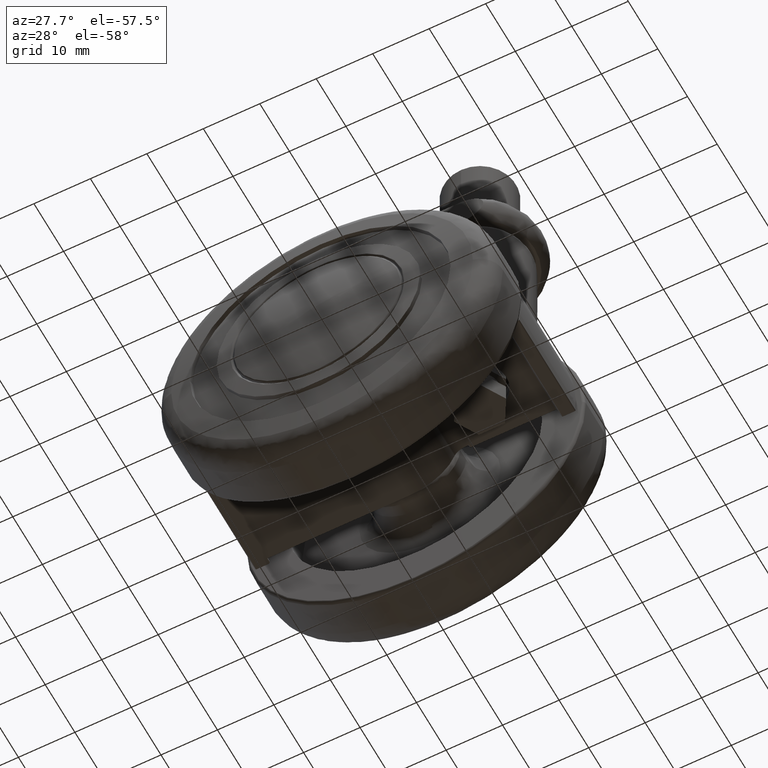
[diagram: clean part render]
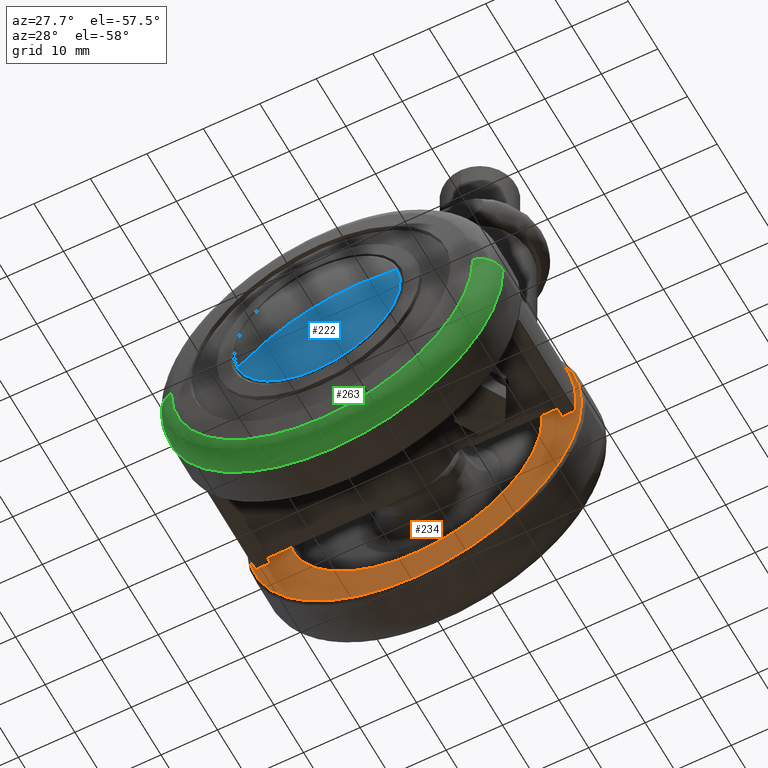
[diagram: same view with three faces highlighted in distinct colors, each labeled with its STEP entity id]
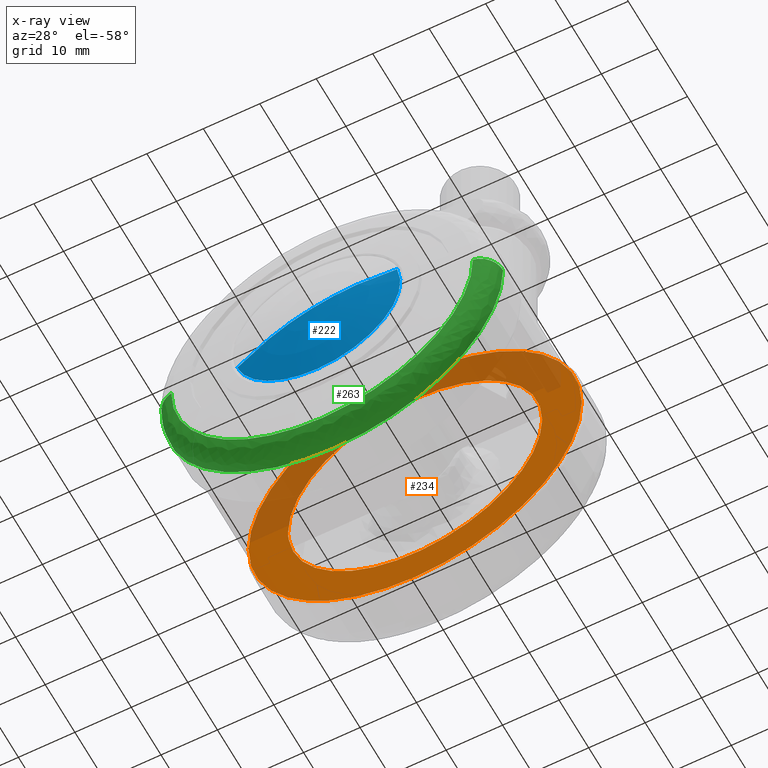
[diagram: x-ray of the same camera — body ghosted, the three highlighted faces saturated]
A machine part, auxiliary view with three faces highlighted in distinct colors.
The next image is the same camera in x-ray (body ghosted, the three faces saturated) — at least one of them is partly hidden behind the body in this view.
Their STEP definitions:

[orange] entity #234 — the highlighted planar face has unit normal (0, 1, 0).
#234=ADVANCED_FACE('',(#1072,#1073),#1071,.F.);
#1071=PLANE('',#3503);
#1072=FACE_OUTER_BOUND('',#3504,.T.);
#1073=FACE_BOUND('',#3505,.T.);
#3500=CARTESIAN_POINT('',(-6.78500000000E+01,-6.10954988233E+01,2.00000000000E+00));
#3501=DIRECTION('',(0.00000000000E+00,0.00000000000E+00,1.00000000000E+00));
#3502=DIRECTION('',(1.00000000000E+00,0.00000000000E+00,0.00000000000E+00));
#3503=AXIS2_PLACEMENT_3D('',#3500,#3501,#3502);
#3504=EDGE_LOOP('',(#4769,#4770));
#3505=EDGE_LOOP('',(#4771,#4772,#4773));
#4769=ORIENTED_EDGE('',*,*,#5289,.T.);
#4770=ORIENTED_EDGE('',*,*,#5290,.T.);
#4771=ORIENTED_EDGE('',*,*,#5291,.F.);
#4772=ORIENTED_EDGE('',*,*,#5292,.F.);
#4773=ORIENTED_EDGE('',*,*,#5293,.F.);
#5289=EDGE_CURVE('',#6762,#6763,#6764,.T.);
#5290=EDGE_CURVE('',#6763,#6762,#6770,.T.);
#5291=EDGE_CURVE('',#6776,#6777,#6778,.T.);
#5292=EDGE_CURVE('',#6784,#6776,#6785,.T.);
#5293=EDGE_CURVE('',#6777,#6784,#6791,.T.);
#6762=VERTEX_POINT('',#8929);
#6763=VERTEX_POINT('',#8930);
#6764=CIRCLE('',#8934,2.95000000000E+01);
#6770=CIRCLE('',#8938,2.95000000000E+01);
#6776=VERTEX_POINT('',#8939);
#6777=VERTEX_POINT('',#8940);
#6778=CIRCLE('',#8944,2.25000000000E+01);
#6784=VERTEX_POINT('',#8945);
#6785=CIRCLE('',#8949,2.25000000000E+01);
#6791=CIRCLE('',#8953,2.25000000000E+01);
#8929=CARTESIAN_POINT('',(2.95000000000E+01,-3.07354836874E-17,2.00000000000E+00));
#8930=CARTESIAN_POINT('',(-2.95000000000E+01,-8.28966525053E-15,2.00000000000E+00));
#8931=CARTESIAN_POINT('',(0.00000000000E+00,0.00000000000E+00,2.00000000000E+00));
#8932=DIRECTION('',(0.00000000000E+00,0.00000000000E+00,-1.00000000000E+00));
#8933=DIRECTION('',(1.00000000000E+00,-1.23502516185E-16,-0.00000000000E+00));
#8934=AXIS2_PLACEMENT_3D('',#8931,#8932,#8933);
#8935=CARTESIAN_POINT('',(0.00000000000E+00,0.00000000000E+00,2.00000000000E+00));
#8936=DIRECTION('',(0.00000000000E+00,0.00000000000E+00,-1.00000000000E+00));
#8937=DIRECTION('',(1.00000000000E+00,-1.23502516185E-16,-0.00000000000E+00));
#8938=AXIS2_PLACEMENT_3D('',#8935,#8936,#8937);
#8939=CARTESIAN_POINT('',(-2.25000000000E+01,-8.03386126938E-08,2.00000000000E+00));
#8940=CARTESIAN_POINT('',(-2.23970834024E+01,2.14957090231E+00,2.00000000000E+00));
#8941=CARTESIAN_POINT('',(0.00000000000E+00,0.00000000000E+00,2.00000000000E+00));
#8942=DIRECTION('',(0.00000000000E+00,0.00000000000E+00,-1.00000000000E+00));
#8943=DIRECTION('',(-9.95425928997E-01,9.55364845470E-02,0.00000000000E+00));
#8944=AXIS2_PLACEMENT_3D('',#8941,#8942,#8943);
#8945=CARTESIAN_POINT('',(2.24999999999E+01,-5.45503734179E-05,2.00000000000E+00));
#8946=CARTESIAN_POINT('',(0.00000000000E+00,0.00000000000E+00,2.00000000000E+00));
#8947=DIRECTION('',(0.00000000000E+00,0.00000000000E+00,-1.00000000000E+00));
#8948=DIRECTION('',(-9.95425928997E-01,9.55364845470E-02,0.00000000000E+00));
#8949=AXIS2_PLACEMENT_3D('',#8946,#8947,#8948);
#8950=CARTESIAN_POINT('',(0.00000000000E+00,0.00000000000E+00,2.00000000000E+00));
#8951=DIRECTION('',(0.00000000000E+00,0.00000000000E+00,-1.00000000000E+00));
#8952=DIRECTION('',(-9.95425928997E-01,9.55364845470E-02,0.00000000000E+00));
#8953=AXIS2_PLACEMENT_3D('',#8950,#8951,#8952);

[blue] entity #222 — the highlighted spherical surface has radius 55 mm.
#222=ADVANCED_FACE('',(#950),#949,.T.);
#949=SPHERICAL_SURFACE('',#2991,5.50000000000E+01);
#950=FACE_OUTER_BOUND('',#2992,.T.);
#2988=CARTESIAN_POINT('',(0.00000000000E+00,3.04300000000E+01,0.00000000000E+00));
#2989=DIRECTION('',(-0.00000000000E+00,-1.00000000000E+00,-0.00000000000E+00));
#2990=DIRECTION('',(-9.61426274566E-01,0.00000000000E+00,-2.75062753885E-01));
#2991=AXIS2_PLACEMENT_3D('',#2988,#2989,#2990);
#2992=EDGE_LOOP('',(#4721,#4722,#4723,#4724));
#4721=ORIENTED_EDGE('',*,*,#5262,.T.);
#4722=ORIENTED_EDGE('',*,*,#5263,.T.);
#4723=ORIENTED_EDGE('',*,*,#5258,.T.);
#4724=ORIENTED_EDGE('',*,*,#5261,.F.);
#5258=EDGE_CURVE('',#6553,#6554,#6555,.T.);
#5261=EDGE_CURVE('',#6568,#6554,#6575,.T.);
#5262=EDGE_CURVE('',#6568,#6581,#6582,.T.);
#5263=EDGE_CURVE('',#6581,#6553,#6588,.T.);
#6553=VERTEX_POINT('',#8778);
#6554=VERTEX_POINT('',#8779);
#6555=(BOUNDED_CURVE() B_SPLINE_CURVE(2,(#8780,#8781,#8782),.UNSPECIFIED.,.F.,.F.) B_SPLINE_CURVE_WITH_KNOTS((3,3),(0.00000000000E+00,1.00000000000E+00),.UNSPECIFIED.) CURVE() GEOMETRIC_REPRESENTATION_ITEM() RATIONAL_B_SPLINE_CURVE((1.00000000000E+00,9.90824837049E-01,1.00000000000E+00)) REPRESENTATION_ITEM('') );
#6568=VERTEX_POINT('',#8788);
#6575=(BOUNDED_CURVE() B_SPLINE_CURVE(2,(#8793,#8794,#8795),.UNSPECIFIED.,.F.,.F.) B_SPLINE_CURVE_WITH_KNOTS((3,3),(0.00000000000E+00,1.00000000000E+00),.UNSPECIFIED.) CURVE() GEOMETRIC_REPRESENTATION_ITEM() RATIONAL_B_SPLINE_CURVE((7.50000000000E-01,7.43118627787E-01,7.50000000000E-01)) REPRESENTATION_ITEM('') );
#6581=VERTEX_POINT('',#8796);
#6582=CIRCLE('',#8800,1.47303473492E+01);
#6588=CIRCLE('',#8804,1.47303473492E+01);
#8778=CARTESIAN_POINT('',(1.41621448727E+01,-2.25607243484E+01,4.05176327460E+00));
#8779=CARTESIAN_POINT('',(-3.05311331772E-16,-2.45700000000E+01,0.00000000000E+00));
#8780=CARTESIAN_POINT('',(1.41621429750E+01,-2.25607243484E+01,4.05176990755E+00));
#8781=CARTESIAN_POINT('',(7.21282191895E+00,-2.45700000000E+01,2.06357857362E+00));
#8782=CARTESIAN_POINT('',(-3.05311331772E-16,-2.45700000000E+01,0.00000000000E+00));
#8788=CARTESIAN_POINT('',(-1.41617941224E+01,-2.25607243484E+01,-4.05298905275E+00));
#8793=CARTESIAN_POINT('',(-1.41621429750E+01,-2.25607243484E+01,-4.05176990755E+00));
#8794=CARTESIAN_POINT('',(-7.21282191895E+00,-2.45700000000E+01,-2.06357857362E+00));
#8795=CARTESIAN_POINT('',(3.05311331772E-16,-2.45700000000E+01,0.00000000000E+00));
#8796=CARTESIAN_POINT('',(0.00000000000E+00,-2.25607243484E+01,-1.47303473492E+01));
#8797=CARTESIAN_POINT('',(0.00000000000E+00,-2.25607243484E+01,0.00000000000E+00));
#8798=DIRECTION('',(0.00000000000E+00,-1.00000000000E+00,-0.00000000000E+00));
#8799=DIRECTION('',(-1.22460635382E-16,0.00000000000E+00,-1.00000000000E+00));
#8800=AXIS2_PLACEMENT_3D('',#8797,#8798,#8799);
#8801=CARTESIAN_POINT('',(0.00000000000E+00,-2.25607243484E+01,0.00000000000E+00));
#8802=DIRECTION('',(0.00000000000E+00,-1.00000000000E+00,-0.00000000000E+00));
#8803=DIRECTION('',(-1.22460635382E-16,0.00000000000E+00,-1.00000000000E+00));
#8804=AXIS2_PLACEMENT_3D('',#8801,#8802,#8803);

[green] entity #263 — the highlighted face is a freeform B-spline surface patch.
#263=ADVANCED_FACE('',(#1368),#1367,.T.);
#1367=( BOUNDED_SURFACE() B_SPLINE_SURFACE( 2,2,((#3951,#3952,#3953,#3954,#3955),(#3956,#3957,#3958,#3959,#3960),(#3961,#3962,#3963,#3964,#3965),(#3966,#3967,#3968,#3969,#3970),(#3971,#3972,#3973,#3974,#3975)), .UNSPECIFIED.,.F.,.F.,.F.) B_SPLINE_SURFACE_WITH_KNOTS((3,2,3),(3,2,3),(0.00000000000E+00,5.00000000000E-01,1.00000000000E+00),(0.00000000000E+00,5.00000000000E-01,1.00000000000E+00), .UNSPECIFIED. ) GEOMETRIC_REPRESENTATION_ITEM() RATIONAL_B_SPLINE_SURFACE(((1.00000000000E+00,7.07106781187E-01,1.00000000000E+00,7.07106781187E-01,1.00000000000E+00),(7.07106781187E-01,5.00000000000E-01,7.07106781187E-01,5.00000000000E-01,7.07106781187E-01),(1.00000000000E+00,7.07106781187E-01,1.00000000000E+00,7.07106781187E-01,1.00000000000E+00),(7.07106781187E-01,5.00000000000E-01,7.07106781187E-01,5.00000000000E-01,7.07106781187E-01),(1.00000000000E+00,7.07106781187E-01,1.00000000000E+00,7.07106781187E-01,1.00000000000E+00))) REPRESENTATION_ITEM('') SURFACE() );
#1368=FACE_OUTER_BOUND('',#3976,.T.);
#3951=CARTESIAN_POINT('',(2.20000000000E+01,-2.69413397841E-15,8.45627996854E+00));
#3952=CARTESIAN_POINT('',(2.20000000000E+01,-2.69413397841E-15,1.24562799685E+01));
#3953=CARTESIAN_POINT('',(2.60000000000E+01,-3.18397651994E-15,1.24562799685E+01));
#3954=CARTESIAN_POINT('',(3.00000000000E+01,-3.67381906147E-15,1.24562799685E+01));
#3955=CARTESIAN_POINT('',(3.00000000000E+01,-3.67381906147E-15,8.45627996854E+00));
#3956=CARTESIAN_POINT('',(2.20000000000E+01,-2.20000000000E+01,8.45627996854E+00));
#3957=CARTESIAN_POINT('',(2.20000000000E+01,-2.20000000000E+01,1.24562799685E+01));
#3958=CARTESIAN_POINT('',(2.60000000000E+01,-2.60000000000E+01,1.24562799685E+01));
#3959=CARTESIAN_POINT('',(3.00000000000E+01,-3.00000000000E+01,1.24562799685E+01));
#3960=CARTESIAN_POINT('',(3.00000000000E+01,-3.00000000000E+01,8.45627996854E+00));
#3961=CARTESIAN_POINT('',(-1.34702249935E-15,-2.20000000000E+01,8.45627996854E+00));
#3962=CARTESIAN_POINT('',(-1.34702249935E-15,-2.20000000000E+01,1.24562799685E+01));
#3963=CARTESIAN_POINT('',(-1.59193568105E-15,-2.60000000000E+01,1.24562799685E+01));
#3964=CARTESIAN_POINT('',(-1.83684886275E-15,-3.00000000000E+01,1.24562799685E+01));
#3965=CARTESIAN_POINT('',(-1.83684886275E-15,-3.00000000000E+01,8.45627996854E+00));
#3966=CARTESIAN_POINT('',(-2.20000000000E+01,-2.20000000000E+01,8.45627996854E+00));
#3967=CARTESIAN_POINT('',(-2.20000000000E+01,-2.20000000000E+01,1.24562799685E+01));
#3968=CARTESIAN_POINT('',(-2.60000000000E+01,-2.60000000000E+01,1.24562799685E+01));
#3969=CARTESIAN_POINT('',(-3.00000000000E+01,-3.00000000000E+01,1.24562799685E+01));
#3970=CARTESIAN_POINT('',(-3.00000000000E+01,-3.00000000000E+01,8.45627996854E+00));
#3971=CARTESIAN_POINT('',(-2.20000000000E+01,-8.89797149472E-20,8.45627996854E+00));
#3972=CARTESIAN_POINT('',(-2.20000000000E+01,-8.89797149470E-20,1.24562799685E+01));
#3973=CARTESIAN_POINT('',(-2.60000000000E+01,-1.05157844937E-19,1.24562799685E+01));
#3974=CARTESIAN_POINT('',(-3.00000000000E+01,-1.21335974927E-19,1.24562799685E+01));
#3975=CARTESIAN_POINT('',(-3.00000000000E+01,-1.21335974928E-19,8.45627996854E+00));
#3976=EDGE_LOOP('',(#4898,#4899,#4900,#4901,#4902));
#4898=ORIENTED_EDGE('',*,*,#5355,.F.);
#4899=ORIENTED_EDGE('',*,*,#5358,.F.);
#4900=ORIENTED_EDGE('',*,*,#5303,.F.);
#4901=ORIENTED_EDGE('',*,*,#5305,.F.);
#4902=ORIENTED_EDGE('',*,*,#5359,.T.);
#5303=EDGE_CURVE('',#6860,#6861,#6862,.T.);
#5305=EDGE_CURVE('',#6868,#6860,#6875,.T.);
#5355=EDGE_CURVE('',#7194,#7201,#7202,.T.);
#5358=EDGE_CURVE('',#6861,#7194,#7220,.T.);
#5359=EDGE_CURVE('',#6868,#7201,#7226,.T.);
#6860=VERTEX_POINT('',#8999);
#6861=VERTEX_POINT('',#9000);
#6862=CIRCLE('',#9004,2.67123287671E+01);
#6868=VERTEX_POINT('',#9005);
#6875=CIRCLE('',#9013,2.67123287671E+01);
#7194=VERTEX_POINT('',#9212);
#7201=VERTEX_POINT('',#9215);
#7202=CIRCLE('',#9219,3.00000000000E+01);
#7220=(BOUNDED_CURVE() B_SPLINE_CURVE(2,(#9226,#9227,#9228),.UNSPECIFIED.,.F.,.F.) B_SPLINE_CURVE_WITH_KNOTS((3,3),(5.61193687220E-01,1.00000000000E+00),.UNSPECIFIED.) CURVE() GEOMETRIC_REPRESENTATION_ITEM() RATIONAL_B_SPLINE_CURVE((9.37081437318E-01,7.42953213228E-01,1.00000000000E+00)) REPRESENTATION_ITEM('') );
#7226=(BOUNDED_CURVE() B_SPLINE_CURVE(2,(#9229,#9230,#9231),.UNSPECIFIED.,.F.,.F.) B_SPLINE_CURVE_WITH_KNOTS((3,3),(5.61193973919E-01,1.00000000000E+00),.UNSPECIFIED.) CURVE() GEOMETRIC_REPRESENTATION_ITEM() RATIONAL_B_SPLINE_CURVE((7.02810887735E-01,5.57215035880E-01,7.50000000000E-01)) REPRESENTATION_ITEM('') );
#8999=CARTESIAN_POINT('',(-1.43418453520E-15,-2.67123287671E+01,1.23923424334E+01));
#9000=CARTESIAN_POINT('',(2.67123287671E+01,-6.83950822632E-10,1.23923424334E+01));
#9001=CARTESIAN_POINT('',(0.00000000000E+00,0.00000000000E+00,1.23923424334E+01));
#9002=DIRECTION('',(-0.00000000000E+00,0.00000000000E+00,1.00000000000E+00));
#9003=DIRECTION('',(3.13691920983E-16,-1.00000000000E+00,0.00000000000E+00));
#9004=AXIS2_PLACEMENT_3D('',#9001,#9002,#9003);
#9005=CARTESIAN_POINT('',(-2.67123286233E+01,2.77215065779E-03,1.23923424334E+01));
#9010=CARTESIAN_POINT('',(0.00000000000E+00,0.00000000000E+00,1.23923424334E+01));
#9011=DIRECTION('',(-0.00000000000E+00,0.00000000000E+00,1.00000000000E+00));
#9012=DIRECTION('',(3.13691920983E-16,-1.00000000000E+00,0.00000000000E+00));
#9013=AXIS2_PLACEMENT_3D('',#9010,#9011,#9012);
#9212=CARTESIAN_POINT('',(3.00000000000E+01,-2.36847578587E-15,8.45627996854E+00));
#9215=CARTESIAN_POINT('',(-3.00000000000E+01,3.67394039744E-15,8.45627996854E+00));
#9216=CARTESIAN_POINT('',(0.00000000000E+00,0.00000000000E+00,8.45627996854E+00));
#9217=DIRECTION('',(0.00000000000E+00,0.00000000000E+00,-1.00000000000E+00));
#9218=DIRECTION('',(-1.00000000000E+00,4.04453249757E-21,0.00000000000E+00));
#9219=AXIS2_PLACEMENT_3D('',#9216,#9217,#9218);
#9226=CARTESIAN_POINT('',(2.67123287694E+01,-3.27120875364E-15,1.23923424330E+01));
#9227=CARTESIAN_POINT('',(3.00000000000E+01,-3.67381906147E-15,1.17973562449E+01));
#9228=CARTESIAN_POINT('',(3.00000000000E+01,-3.67381906147E-15,8.45627996854E+00));
#9229=CARTESIAN_POINT('',(-2.67123321755E+01,2.56536229312E-15,1.23923418166E+01));
#9230=CARTESIAN_POINT('',(-3.00000000000E+01,3.57808274943E-15,1.17973533067E+01));
#9231=CARTESIAN_POINT('',(-3.00000000000E+01,4.73695157173E-15,8.45627996854E+00));